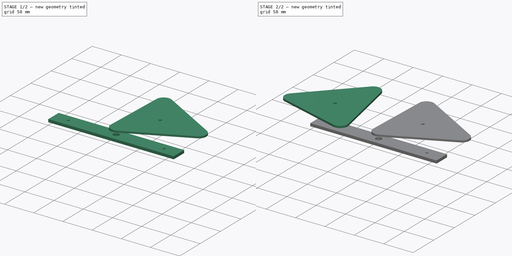
[diagram: build sequence overview — one tinted view per stage of 2, left to right]
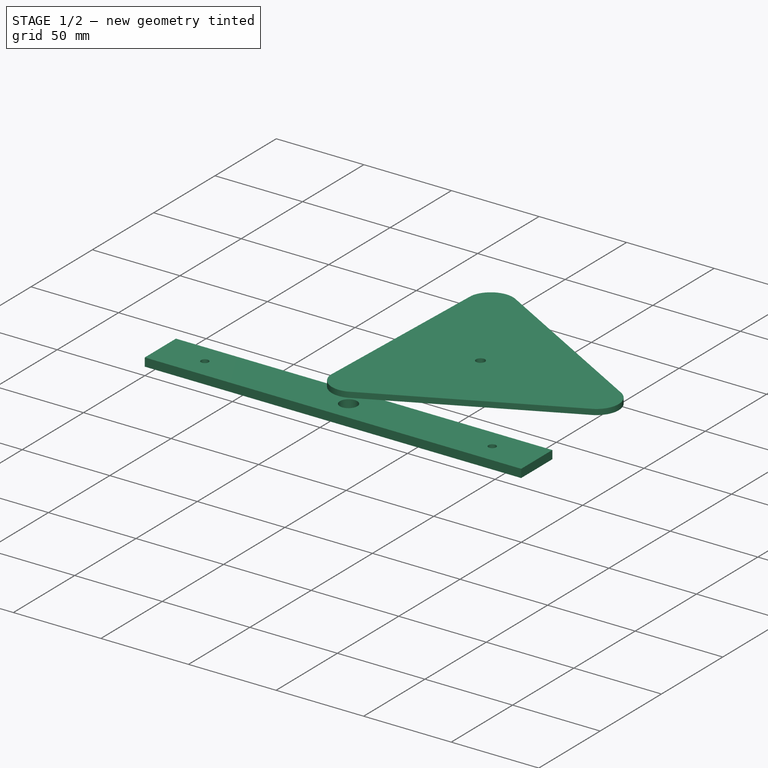
[diagram: stage 1 of 2 — iso view after this stage's code; geometry added in this stage tinted green]
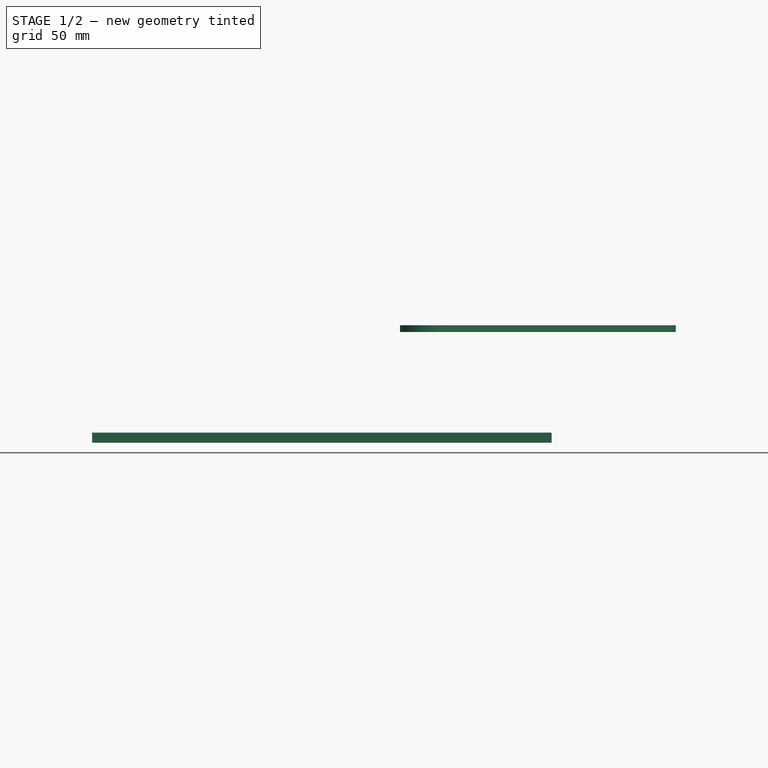
[diagram: stage 1 of 2 — front view after this stage's code; geometry added in this stage tinted green]
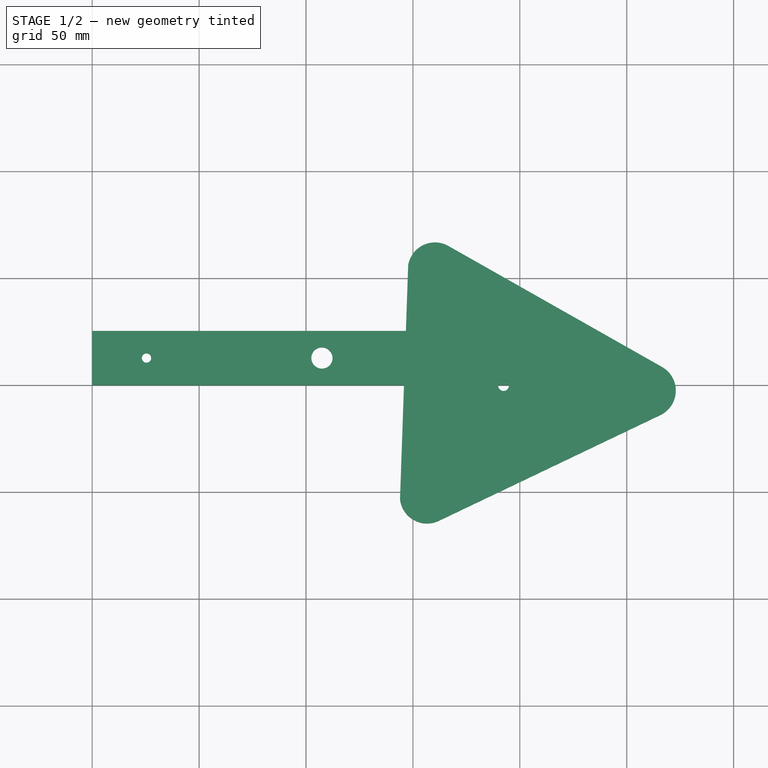
[diagram: stage 1 of 2 — top view after this stage's code; geometry added in this stage tinted green]
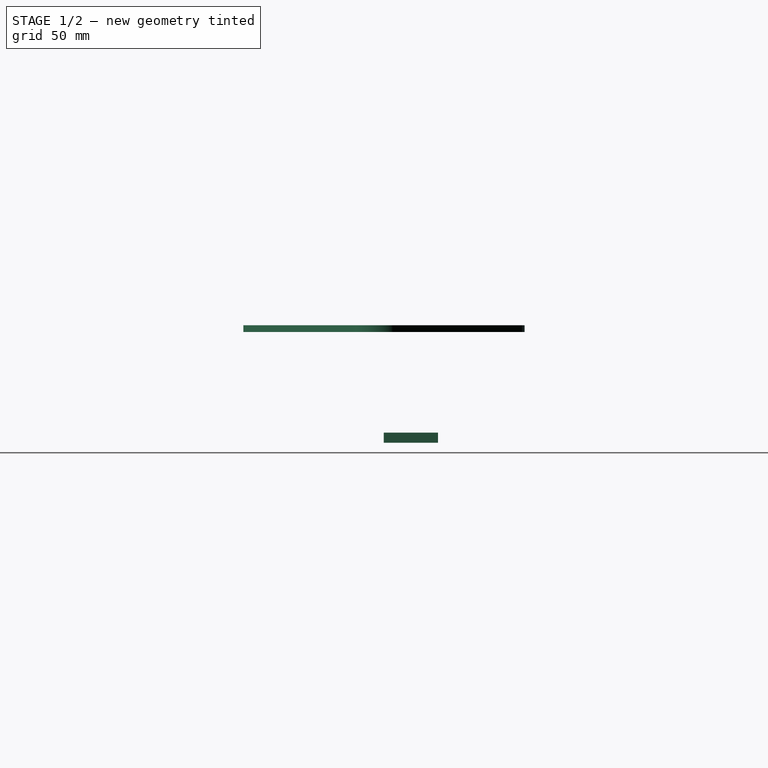
[diagram: stage 1 of 2 — right view after this stage's code; geometry added in this stage tinted green]
FCSTD DOCUMENT  (FreeCAD 0.19R24291 (Git))
Label: floating_bar_assembly
License: All rights reserved
LicenseURL: http://en.wikipedia.org/wiki/All_rights_reserved
objects: Sketcher::SketchObject×3, Part::Extrusion×3
note: 6 computed .brp shape members not serialized (recipe doc carries the construction recipe); baked Part::Feature solids carry a one-line shape summary decoded from their .brp

FEATURE [Sketcher::SketchObject] Sketch
  FullyConstrained = true
  MapMode = 5
  Support = -> [XY_Plane]
  sketch-geometry (17):
    g0: LineSegment StartX=0 StartY=0 StartZ=0 EndX=214.884 EndY=0 EndZ=0
    g1: LineSegment StartX=214.884 StartY=0 StartZ=0 EndX=214.884 EndY=25.4 EndZ=0
    g2: LineSegment StartX=214.884 StartY=25.4 StartZ=0 EndX=0 EndY=25.4 EndZ=0
    g3: LineSegment StartX=0 StartY=25.4 StartZ=0 EndX=0 EndY=0 EndZ=0
    g4: LineSegment StartX=0 StartY=25.4 StartZ=0 EndX=214.884 EndY=0 EndZ=0
    g5: LineSegment StartX=214.884 StartY=25.4 StartZ=0 EndX=0 EndY=0 EndZ=0
    g6: GeomPoint X=107.442 Y=12.7 Z=0
    g7: Circle CenterX=107.442 CenterY=12.7 CenterZ=0 NormalX=0 NormalY=0 NormalZ=1 AngleXU=0 Radius=4.96094
    g8: Circle CenterX=0 CenterY=25.4 CenterZ=0 NormalX=0 NormalY=0 NormalZ=1 AngleXU=0 Radius=25.4
    g9: Circle CenterX=0 CenterY=0 CenterZ=0 NormalX=0 NormalY=0 NormalZ=1 AngleXU=0 Radius=25.4
    g10: Circle CenterX=214.884 CenterY=25.4 CenterZ=0 NormalX=0 NormalY=0 NormalZ=1 AngleXU=0 Radius=25.4
    g11: Circle CenterX=214.884 CenterY=0 CenterZ=0 NormalX=0 NormalY=0 NormalZ=1 AngleXU=0 Radius=25.4
    g12: GeomPoint X=-21.997 Y=12.7 Z=0
    g13: GeomPoint X=236.881 Y=12.7 Z=0
    g14: LineSegment StartX=-21.997 StartY=12.7 StartZ=0 EndX=236.881 EndY=12.7 EndZ=0
    g15: Circle CenterX=25.4 CenterY=12.7 CenterZ=0 NormalX=0 NormalY=0 NormalZ=1 AngleXU=0 Radius=2.18281
    g16: Circle CenterX=189.484 CenterY=12.7 CenterZ=0 NormalX=0 NormalY=0 NormalZ=1 AngleXU=0 Radius=2.18281
  constraints (40):
    c: Coincident(g0,g1)
    c: Coincident(g1,g2)
    c: Coincident(g2,g3)
    c: Coincident(g3,g0)
    c: Horizontal(g0)
    c: Horizontal(g2)
    c: Vertical(g1)
    c: Vertical(g3)
    c: Coincident(g0,g-1)
    c: Distance(g2) = 214.884
    c: Distance(g1) = 25.4
    c: Coincident(g4,g2)
    c: Coincident(g4,g0)
    c: Coincident(g5,g1)
    c: Coincident(g5,g0)
    c: PointOnObject(g6,g5)
    c: PointOnObject(g6,g4)
    c: Coincident(g7,g6)
    c: Radius(g7) = 4.96094
    c: Coincident(g8,g2)
    c: PointOnObject(g0,g8)
    c: Coincident(g9,g0)
    c: PointOnObject(g2,g9)
    c: Coincident(g10,g1)
    c: PointOnObject(g0,g10)
    c: Coincident(g11,g0)
    c: PointOnObject(g1,g11)
    c: PointOnObject(g12,g8)
    c: PointOnObject(g13,g10)
    c: PointOnObject(g12,g9)
    c: PointOnObject(g13,g11)
    c: Coincident(g14,g12)
    c: Coincident(g14,g13)
    c: PointOnObject(g15,g14)
    c: Radius(g15) = 2.18281
    c: Distance(g15,g3) = 25.4
    c: PointOnObject(g16,g14)
    c: Distance(g16,g1) = 25.4
    c: Block(g16)
    c: Radius(g16) = 2.18281
FEATURE [Part::Extrusion] Extrude
  Base = -> Sketch
  Dir = (0,0,1)
  DirMode = 2
  FaceMakerClass = Part::FaceMakerBullseye
  LengthFwd = 4.7625
  LengthRev = 0
  Solid = true
  Symmetric = false
FEATURE [Sketcher::SketchObject] Sketch002
  FullyConstrained = true
  MapMode = 5
  Placement = pos=(0,0,0) rot=(1,0,0;1.5708rad)
  Support = -> [XZ_Plane002]
  sketch-geometry (20):
    g0: LineSegment StartX=0 StartY=0 StartZ=0 EndX=106.172 EndY=0 EndZ=0
    g1: LineSegment StartX=53.086 StartY=101.854 StartZ=0 EndX=106.172 EndY=0 EndZ=0
    g2: LineSegment StartX=53.086 StartY=101.854 StartZ=0 EndX=0 EndY=0 EndZ=0
    g3: GeomPoint X=53.086 Y=0 Z=0
    g4: LineSegment StartX=53.086 StartY=101.854 StartZ=0 EndX=53.086 EndY=0 EndZ=0
    g5: ArcOfCircle CenterX=106.172 CenterY=0 CenterZ=0 NormalX=0 NormalY=0 NormalZ=1 AngleXU=0 Radius=12.7 StartAngle=4.8418 EndAngle=6.76365
    g6: ArcOfCircle CenterX=0 CenterY=0 CenterZ=0 NormalX=0 NormalY=0 NormalZ=1 AngleXU=0 Radius=12.7 StartAngle=2.66113 EndAngle=4.58298
    g7: LineSegment StartX=-11.2621 StartY=5.86979 StartZ=0 EndX=41.8239 EndY=107.724 EndZ=0
    g8: LineSegment StartX=64.3481 StartY=107.724 StartZ=0 EndX=117.434 EndY=5.86981 EndZ=0
    g9: GeomPoint X=79.629 Y=50.927 Z=0
    g10: Circle CenterX=106.172 CenterY=0 CenterZ=0 NormalX=0 NormalY=0 NormalZ=1 AngleXU=0 Radius=57.429
    g11: Circle CenterX=53.086 CenterY=101.854 CenterZ=0 NormalX=0 NormalY=0 NormalZ=1 AngleXU=0 Radius=57.429
    g12: LineSegment StartX=79.629 StartY=50.927 StartZ=0 EndX=0 EndY=0 EndZ=0
    g13: GeomPoint X=53.086 Y=33.9513 Z=0
    g14: LineSegment StartX=-1.63896 StartY=-12.5938 StartZ=0 EndX=107.811 EndY=-12.5938 EndZ=0
    g15: ArcOfCircle CenterX=53.086 CenterY=101.854 CenterZ=0 NormalX=0 NormalY=0 NormalZ=1 AngleXU=0 Radius=12.7 StartAngle=0.480461 EndAngle=2.66113
    g16: LineSegment StartX=41.8239 StartY=107.724 StartZ=0 EndX=64.3481 EndY=107.724 EndZ=0
    g17: LineSegment StartX=-11.2621 StartY=5.86979 StartZ=0 EndX=-1.63896 EndY=-12.5938 EndZ=0
    g18: LineSegment StartX=117.434 StartY=5.86981 StartZ=0 EndX=107.811 EndY=-12.5938 EndZ=0
    g19: Circle CenterX=53.086 CenterY=33.9513 CenterZ=0 NormalX=0 NormalY=0 NormalZ=1 AngleXU=0 Radius=2.54
  constraints (48):
    c: Coincident(g0,g-1)
    c: PointOnObject(g0,g-1)
    c: Coincident(g1,g0)
    c: Coincident(g2,g1)
    c: Coincident(g2,g0)
    c: Distance(g0) = 106.172
    c: Distance(g1,g0) = 101.854
    c: PointOnObject(g3,g0)
    c: Coincident(g4,g1)
    c: Coincident(g4,g3)
    c: Vertical(g4)
    c: Distance(g0,g4) = 53.086
    c: Coincident(g5,g0)
    c: Radius(g5) = 12.7
    c: Coincident(g6,g0)
    c: Radius(g6) = 12.7
    c: Parallel(g2,g7)
    c: Parallel(g1,g8)
    c: PointOnObject(g9,g1)
    c: Coincident(g10,g0)
    c: PointOnObject(g9,g10)
    c: Coincident(g11,g1)
    c: PointOnObject(g9,g11)
    c: Equal(g11,g10)
    c: Coincident(g12,g9)
    c: Coincident(g12,g0)
    c: PointOnObject(g13,g4)
    c: PointOnObject(g13,g12)
    c: Coincident(g15,g7) = 1.5708
    c: Tangent(g15,g8) = 1.5708
    c: Coincident(g6,g7)
    c: Coincident(g5,g14)
    c: Coincident(g5,g8)
    c: Coincident(g6,g14)
    c: Coincident(g16,g7)
    c: Coincident(g16,g8)
    c: Parallel(g16,g14)
    c: Coincident(g17,g6)
    c: Coincident(g17,g6)
    c: Parallel(g17,g8)
    c: Coincident(g18,g5)
    c: Coincident(g18,g5)
    c: Parallel(g7,g18)
    c: Tangent(g7,g6)
    c: Radius(g15) = 12.7
    c: Tangent(g8,g5)
    c: Coincident(g19,g13)
    c: Radius(g19) = 2.54
FEATURE [Part::Extrusion] Extrude002
  Base = -> Sketch002
  Dir = (0,-1,-2e-16)
  DirMode = 2
  FaceMakerClass = Part::FaceMakerBullseye
  LengthFwd = 3.175
  LengthRev = 0
  Placement = pos=(156.609,-52.9152,54.9999) rot=(0.590785,0.570514,0.570514;2.07436rad)
  Solid = true
  Symmetric = false
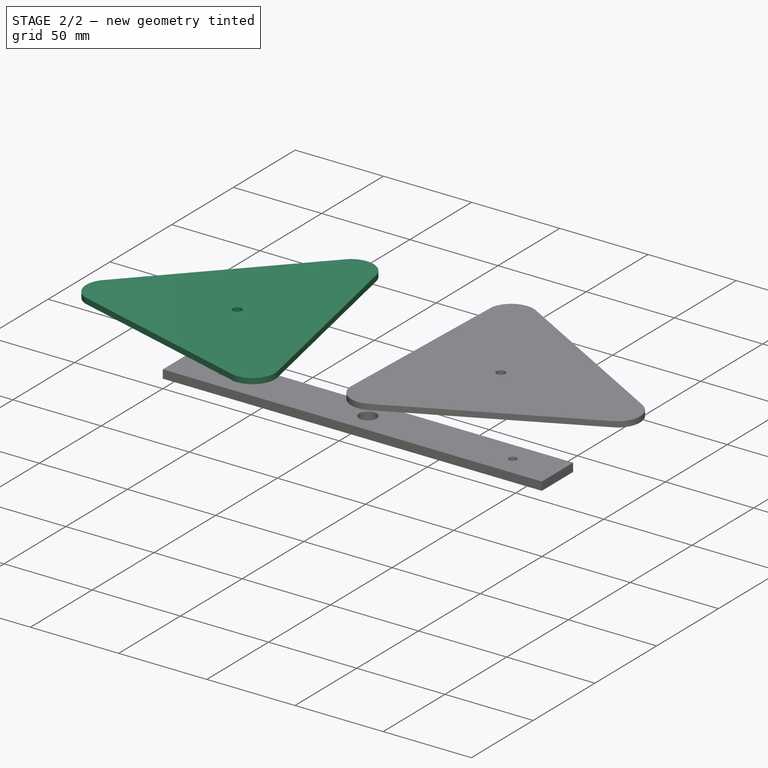
[diagram: stage 2 of 2 — iso view after this stage's code; geometry added in this stage tinted green]
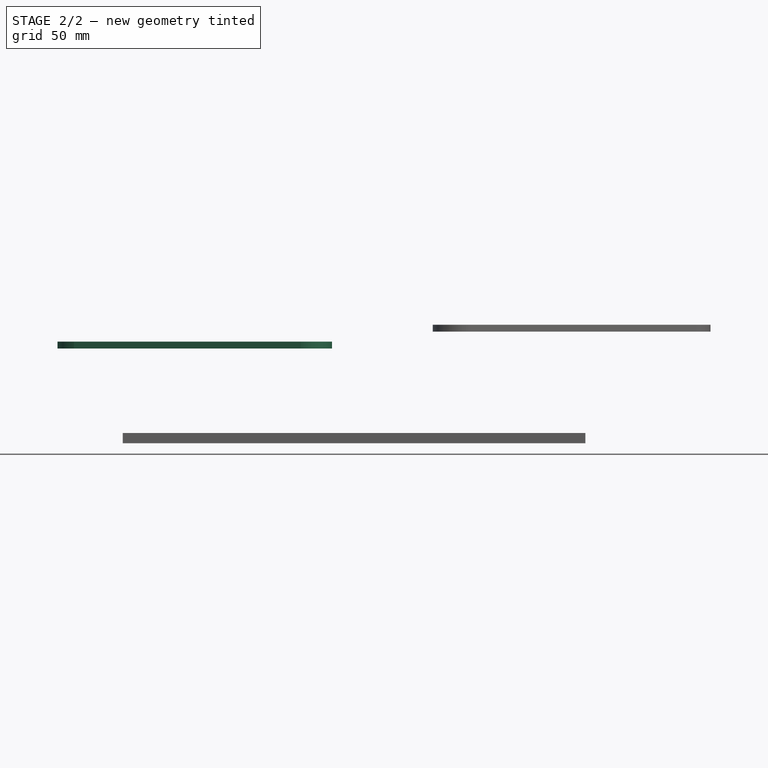
[diagram: stage 2 of 2 — front view after this stage's code; geometry added in this stage tinted green]
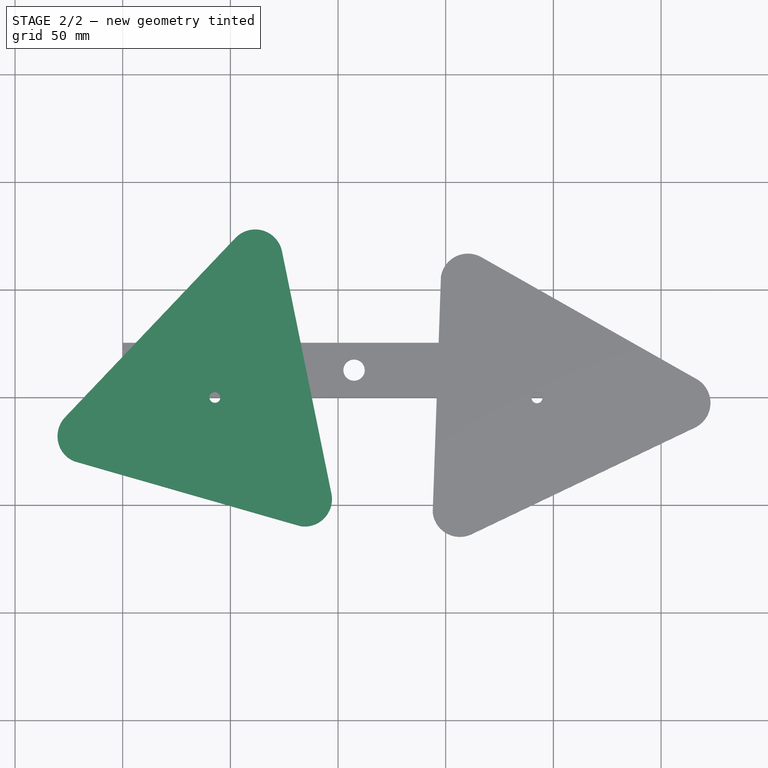
[diagram: stage 2 of 2 — top view after this stage's code; geometry added in this stage tinted green]
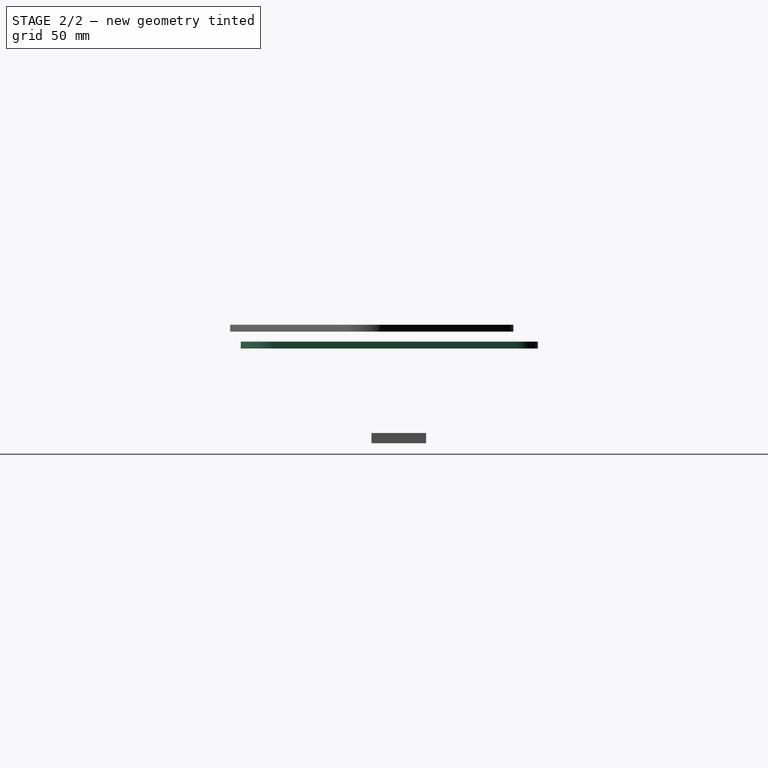
[diagram: stage 2 of 2 — right view after this stage's code; geometry added in this stage tinted green]
FEATURE [Sketcher::SketchObject] Sketch001
  FullyConstrained = true
  MapMode = 5
  Placement = pos=(0,0,0) rot=(1,0,0;1.5708rad)
  Support = -> [XZ_Plane001]
  sketch-geometry (20):
    g0: LineSegment StartX=0 StartY=0 StartZ=0 EndX=106.172 EndY=0 EndZ=0
    g1: LineSegment StartX=53.086 StartY=101.854 StartZ=0 EndX=106.172 EndY=0 EndZ=0
    g2: LineSegment StartX=53.086 StartY=101.854 StartZ=0 EndX=0 EndY=0 EndZ=0
    g3: GeomPoint X=53.086 Y=0 Z=0
    g4: LineSegment StartX=53.086 StartY=101.854 StartZ=0 EndX=53.086 EndY=0 EndZ=0
    g5: ArcOfCircle CenterX=106.172 CenterY=0 CenterZ=0 NormalX=0 NormalY=0 NormalZ=1 AngleXU=0 Radius=12.7 StartAngle=4.8418 EndAngle=6.76365
    g6: ArcOfCircle CenterX=0 CenterY=0 CenterZ=0 NormalX=0 NormalY=0 NormalZ=1 AngleXU=0 Radius=12.7 StartAngle=2.66113 EndAngle=4.58298
    g7: LineSegment StartX=-11.2621 StartY=5.86979 StartZ=0 EndX=41.8239 EndY=107.724 EndZ=0
    g8: LineSegment StartX=64.3481 StartY=107.724 StartZ=0 EndX=117.434 EndY=5.86981 EndZ=0
    g9: GeomPoint X=79.629 Y=50.927 Z=0
    g10: Circle CenterX=106.172 CenterY=0 CenterZ=0 NormalX=0 NormalY=0 NormalZ=1 AngleXU=0 Radius=57.429
    g11: Circle CenterX=53.086 CenterY=101.854 CenterZ=0 NormalX=0 NormalY=0 NormalZ=1 AngleXU=0 Radius=57.429
    g12: LineSegment StartX=79.629 StartY=50.927 StartZ=0 EndX=0 EndY=0 EndZ=0
    g13: GeomPoint X=53.086 Y=33.9513 Z=0
    g14: LineSegment StartX=-1.63896 StartY=-12.5938 StartZ=0 EndX=107.811 EndY=-12.5938 EndZ=0
    g15: ArcOfCircle CenterX=53.086 CenterY=101.854 CenterZ=0 NormalX=0 NormalY=0 NormalZ=1 AngleXU=0 Radius=12.7 StartAngle=0.480461 EndAngle=2.66113
    g16: LineSegment StartX=41.8239 StartY=107.724 StartZ=0 EndX=64.3481 EndY=107.724 EndZ=0
    g17: LineSegment StartX=-11.2621 StartY=5.86979 StartZ=0 EndX=-1.63896 EndY=-12.5938 EndZ=0
    g18: LineSegment StartX=117.434 StartY=5.86981 StartZ=0 EndX=107.811 EndY=-12.5938 EndZ=0
    g19: Circle CenterX=53.086 CenterY=33.9513 CenterZ=0 NormalX=0 NormalY=0 NormalZ=1 AngleXU=0 Radius=2.54
  constraints (48):
    c: Coincident(g0,g-1)
    c: PointOnObject(g0,g-1)
    c: Coincident(g1,g0)
    c: Coincident(g2,g1)
    c: Coincident(g2,g0)
    c: Distance(g0) = 106.172
    c: Distance(g1,g0) = 101.854
    c: PointOnObject(g3,g0)
    c: Coincident(g4,g1)
    c: Coincident(g4,g3)
    c: Vertical(g4)
    c: Distance(g0,g4) = 53.086
    c: Coincident(g5,g0)
    c: Radius(g5) = 12.7
    c: Coincident(g6,g0)
    c: Radius(g6) = 12.7
    c: Parallel(g2,g7)
    c: Parallel(g1,g8)
    c: PointOnObject(g9,g1)
    c: Coincident(g10,g0)
    c: PointOnObject(g9,g10)
    c: Coincident(g11,g1)
    c: PointOnObject(g9,g11)
    c: Equal(g11,g10)
    c: Coincident(g12,g9)
    c: Coincident(g12,g0)
    c: PointOnObject(g13,g4)
    c: PointOnObject(g13,g12)
    c: Coincident(g15,g7) = 1.5708
    c: Tangent(g15,g8) = 1.5708
    c: Coincident(g6,g7)
    c: Coincident(g5,g14)
    c: Coincident(g5,g8)
    c: Coincident(g6,g14)
    c: Coincident(g16,g7)
    c: Coincident(g16,g8)
    c: Parallel(g16,g14)
    c: Coincident(g17,g6)
    c: Coincident(g17,g6)
    c: Parallel(g17,g8)
    c: Coincident(g18,g5)
    c: Coincident(g18,g5)
    c: Parallel(g7,g18)
    c: Tangent(g7,g6)
    c: Radius(g15) = 12.7
    c: Tangent(g8,g5)
    c: Coincident(g19,g13)
    c: Radius(g19) = 2.54
FEATURE [Part::Extrusion] Extrude001
  Base = -> Sketch001
  Dir = (0,-1,-2e-16)
  DirMode = 2
  FaceMakerClass = Part::FaceMakerBullseye
  LengthFwd = 3.175
  LengthRev = 0
  Placement = pos=(-17.5714,-18.7196,43.9999) rot=(-0.980815,0.137845,-0.137845;1.59017rad)
  Solid = true
  Symmetric = false
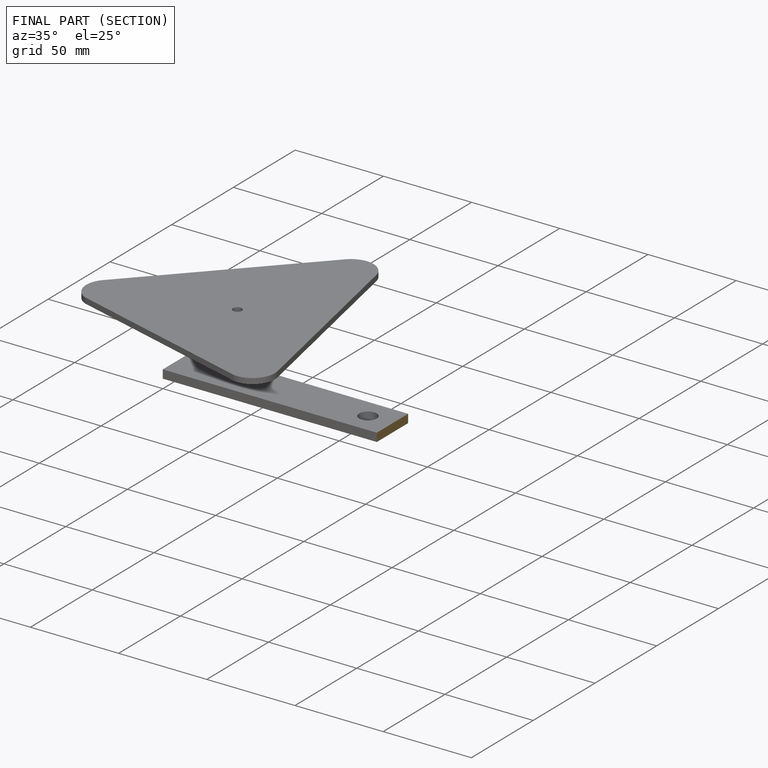
[diagram: finished part — half-section view (interior)]
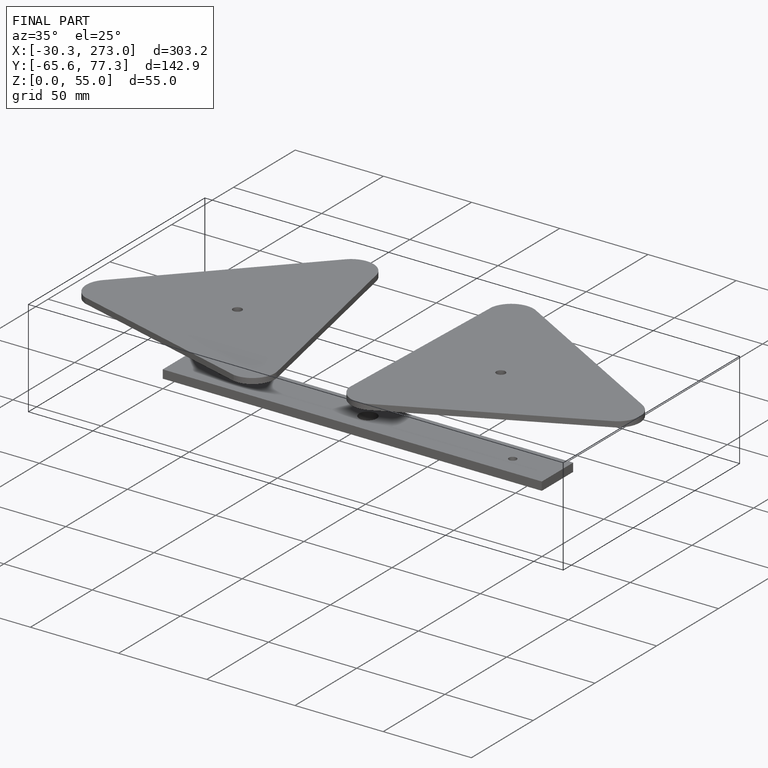
[diagram: finished part — iso view with bounding-box wireframe]
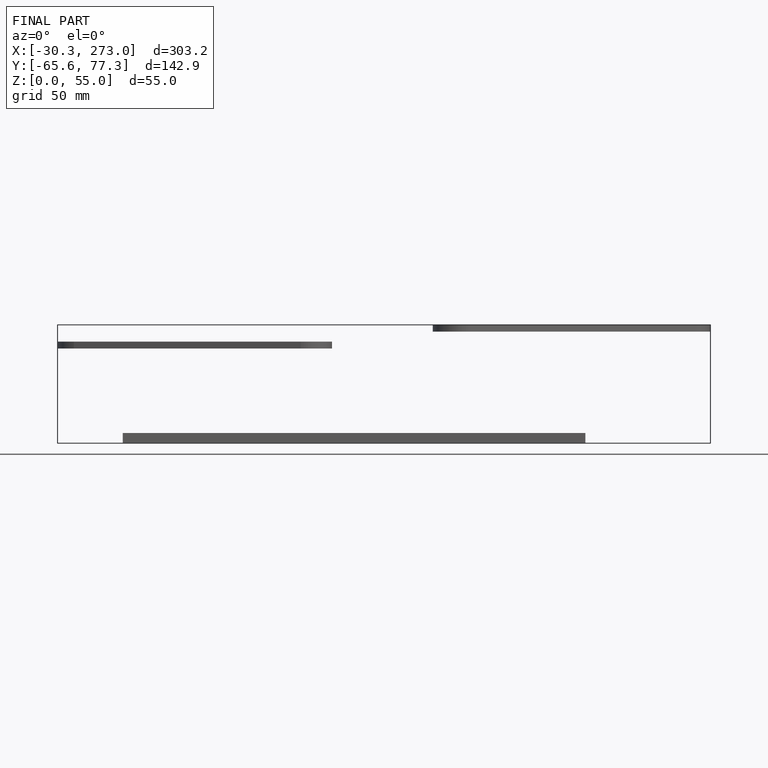
[diagram: finished part — front view with bounding-box wireframe]
